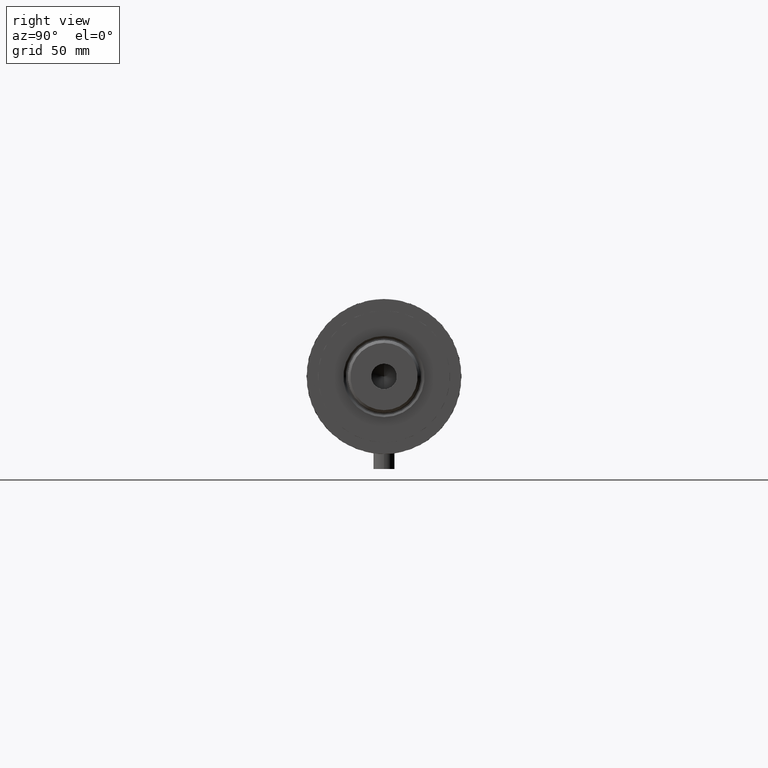
[diagram: clean part render]
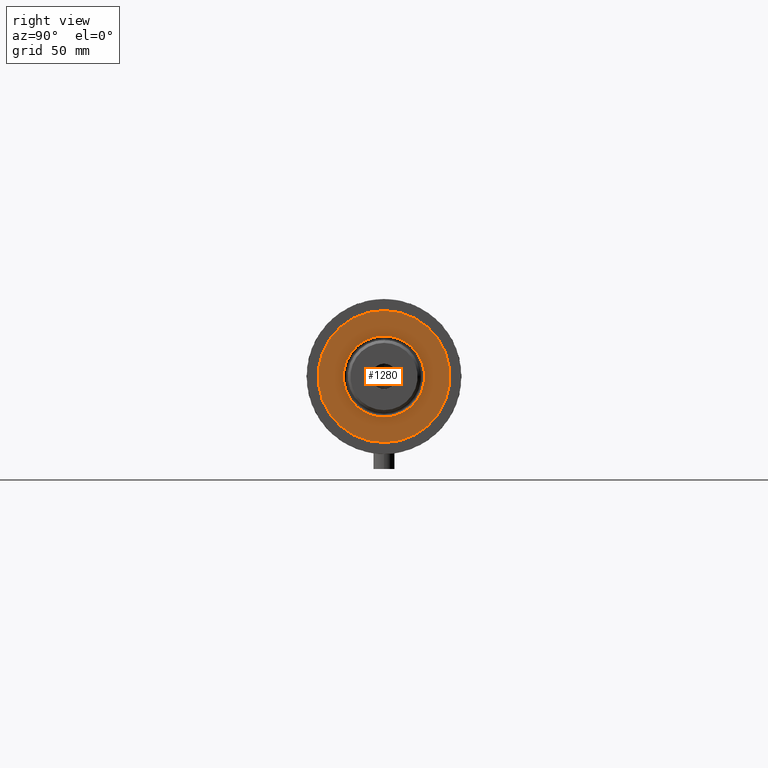
[diagram: same view with one face highlighted and labeled with its STEP entity id]
A machine part, right view. The second image highlights one B-rep face of the part: STEP entity #1280.
In plain terms, the highlighted planar face has unit normal (1, 0, -0).
Its self-contained STEP definition (entity closure, byte-faithful):
#10 = EDGE_LOOP ( 'NONE', ( #61, #3378 ) ) ;
#30 = AXIS2_PLACEMENT_3D ( 'NONE', #4228, #729, #68 ) ;
#61 = ORIENTED_EDGE ( 'NONE', *, *, #1307, .T. ) ;
#68 = DIRECTION ( 'NONE',  ( 1.000000000000000000, 0.000000000000000000, 0.000000000000000000 ) ) ;
#382 = DIRECTION ( 'NONE',  ( 1.000000000000000000, 0.000000000000000000, 0.000000000000000000 ) ) ;
#463 = CIRCLE ( 'NONE', #2303, 23.05000000000002913 ) ;
#500 = DIRECTION ( 'NONE',  ( 1.000000000000000000, 0.000000000000000000, 0.000000000000000000 ) ) ;
#634 = EDGE_CURVE ( 'NONE', #3316, #2668, #2736, .T. ) ;
#640 = DIRECTION ( 'NONE',  ( 0.000000000000000000, 0.000000000000000000, 1.000000000000000000 ) ) ;
#729 = DIRECTION ( 'NONE',  ( 0.000000000000000000, 0.000000000000000000, 1.000000000000000000 ) ) ;
#737 = VERTEX_POINT ( 'NONE', #3639 ) ;
#927 = DIRECTION ( 'NONE',  ( -0.000000000000000000, -0.000000000000000000, -1.000000000000000000 ) ) ;
#945 = DIRECTION ( 'NONE',  ( 1.000000000000000000, 0.000000000000000000, -0.000000000000000000 ) ) ;
#975 = DIRECTION ( 'NONE',  ( -0.000000000000000000, -0.000000000000000000, -1.000000000000000000 ) ) ;
#990 = CARTESIAN_POINT ( 'NONE',  ( 0.000000000000000000, 0.000000000000000000, 59.89999999999999147 ) ) ;
#1026 = CARTESIAN_POINT ( 'NONE',  ( 23.05000000000002913, 0.000000000000000000, 59.89999999999999147 ) ) ;
#1037 = EDGE_LOOP ( 'NONE', ( #4055, #2119 ) ) ;
#1140 = AXIS2_PLACEMENT_3D ( 'NONE', #3287, #4418, #500 ) ;
#1257 = CARTESIAN_POINT ( 'NONE',  ( 37.50000000000000711, 4.592425496802575156E-15, 59.89999999999999147 ) ) ;
#1280 = ADVANCED_FACE ( 'NONE', ( #4470, #4173 ), #3428, .T. ) ;
#1307 = EDGE_CURVE ( 'NONE', #2163, #737, #463, .T. ) ;
#1944 = CIRCLE ( 'NONE', #3498, 23.05000000000002913 ) ;
#2017 = CARTESIAN_POINT ( 'NONE',  ( -37.50000000000000711, 0.000000000000000000, 59.89999999999999147 ) ) ;
#2034 = DIRECTION ( 'NONE',  ( 1.000000000000000000, 0.000000000000000000, 0.000000000000000000 ) ) ;
#2069 = CARTESIAN_POINT ( 'NONE',  ( 0.000000000000000000, 0.000000000000000000, 59.89999999999999147 ) ) ;
#2119 = ORIENTED_EDGE ( 'NONE', *, *, #634, .T. ) ;
#2163 = VERTEX_POINT ( 'NONE', #1026 ) ;
#2166 = CIRCLE ( 'NONE', #1140, 37.50000000000000711 ) ;
#2303 = AXIS2_PLACEMENT_3D ( 'NONE', #990, #927, #2034 ) ;
#2455 = AXIS2_PLACEMENT_3D ( 'NONE', #2676, #640, #945 ) ;
#2668 = VERTEX_POINT ( 'NONE', #2017 ) ;
#2676 = CARTESIAN_POINT ( 'NONE',  ( 0.000000000000000000, 0.000000000000000000, 59.89999999999999147 ) ) ;
#2736 = CIRCLE ( 'NONE', #30, 37.50000000000000711 ) ;
#3287 = CARTESIAN_POINT ( 'NONE',  ( 0.000000000000000000, 0.000000000000000000, 59.89999999999999147 ) ) ;
#3316 = VERTEX_POINT ( 'NONE', #1257 ) ;
#3364 = EDGE_CURVE ( 'NONE', #2668, #3316, #2166, .T. ) ;
#3378 = ORIENTED_EDGE ( 'NONE', *, *, #4008, .T. ) ;
#3428 = PLANE ( 'NONE',  #2455 ) ;
#3498 = AXIS2_PLACEMENT_3D ( 'NONE', #2069, #975, #382 ) ;
#3639 = CARTESIAN_POINT ( 'NONE',  ( -23.05000000000002913, 2.822810872034651791E-15, 59.89999999999999147 ) ) ;
#4008 = EDGE_CURVE ( 'NONE', #737, #2163, #1944, .T. ) ;
#4055 = ORIENTED_EDGE ( 'NONE', *, *, #3364, .T. ) ;
#4173 = FACE_OUTER_BOUND ( 'NONE', #1037, .T. ) ;
#4228 = CARTESIAN_POINT ( 'NONE',  ( 0.000000000000000000, 0.000000000000000000, 59.89999999999999147 ) ) ;
#4418 = DIRECTION ( 'NONE',  ( 0.000000000000000000, 0.000000000000000000, 1.000000000000000000 ) ) ;
#4470 = FACE_BOUND ( 'NONE', #10, .T. ) ;